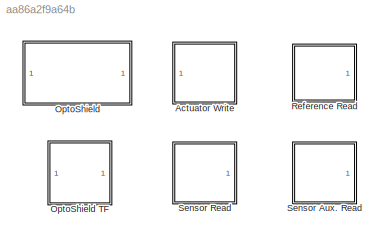
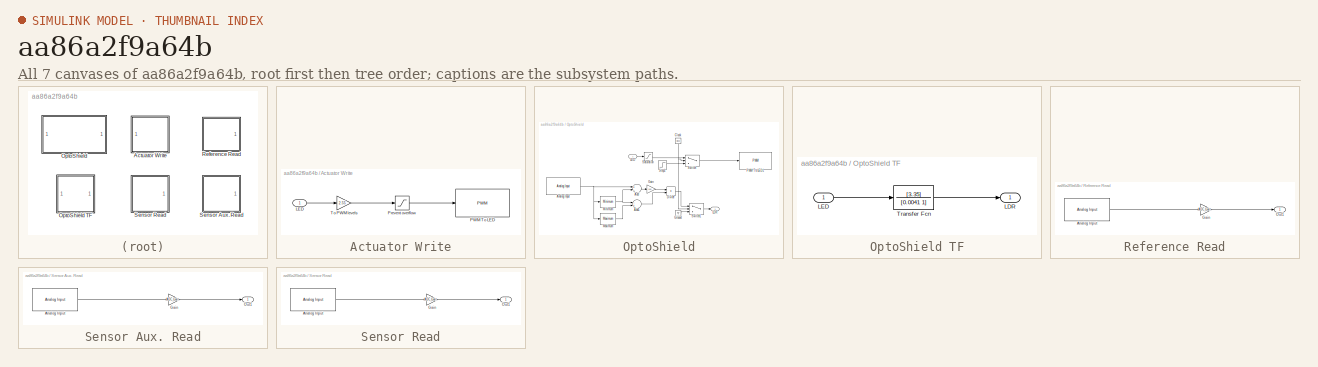
[diagram: thumbnail index - all 7 canvases of the model, root first then tree order]
MODEL slx_aa86a2f9a64b
KIND library
CONFIG AbsTol = auto
CONFIG EnableMultiTasking = off
CONFIG FixedStep = auto
CONFIG MaxStep = auto
CONFIG MinStep = auto
CONFIG RelTol = 1e-3
CONFIG SampleTimeConstraint = Unconstrained
CONFIG Solver = VariableStepAuto
CONFIG SolverName = VariableStepAuto
CONFIG StartTime = 0.0
CONFIG StopTime = 10.0
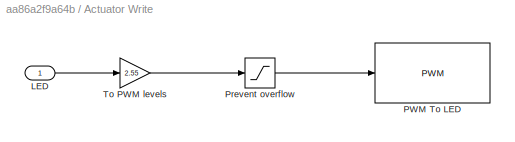
BLOCK [SubSystem] Actuator Write
  Ports = [1]
  RequestExecContextInheritance = off
BLOCK [Inport] Actuator Write/LED
  IconDisplay = Port number
BLOCK [Reference] Actuator Write/PWM To LED  REF=arduinolib/PWM
  Ports = [1]
  SourceBlock = arduinolib/PWM
  SourceProductBaseCode = ARDUINO
  SourceProductName = Simulink Support Package for Arduino Hardware
  SourceType = Arduino PWM
BLOCK [Saturate] Actuator Write/Prevent overflow
  InputPortMap = u0
  LowerLimit = 0
  Ports = [1, 1]
  UpperLimit = 255
BLOCK [Gain] Actuator Write/To PWM levels
  Gain = 2.55
  OutDataTypeStr = Inherit: Inherit via internal rule
  ParamDataTypeStr = Inherit: Inherit via internal rule
  SaturateOnIntegerOverflow = off
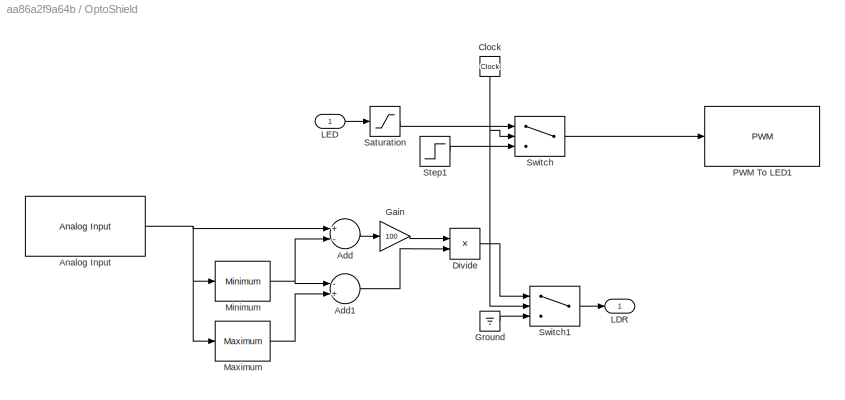
BLOCK [SubSystem] OptoShield
  Ports = [1, 1]
  RequestExecContextInheritance = off
BLOCK [SubSystem] OptoShield TF
  Ports = [1, 1]
  RequestExecContextInheritance = off
BLOCK [Outport] OptoShield TF/LDR
  IconDisplay = Port number
BLOCK [Inport] OptoShield TF/LED
  IconDisplay = Port number
BLOCK [TransferFcn] OptoShield TF/Transfer Fcn
  Denominator = [0.0041 1]
  Numerator = [3.35]
BLOCK [Sum] OptoShield/Add
  InputSameDT = off
  Inputs = +-
  OutDataTypeStr = Inherit: Inherit via internal rule
  Ports = [2, 1]
  SaturateOnIntegerOverflow = off
BLOCK [Sum] OptoShield/Add1
  InputSameDT = off
  Inputs = -+
  OutDataTypeStr = Inherit: Inherit via internal rule
  Ports = [2, 1]
  SaturateOnIntegerOverflow = off
BLOCK [Reference] OptoShield/Analog Input  REF=arduinolib/Analog Input
  Ports = [0, 1]
  SourceBlock = arduinolib/Analog Input
  SourceProductBaseCode = ARDUINO
  SourceProductName = Simulink Support Package for Arduino Hardware
  SourceType = Arduino Analog Input
BLOCK [Clock] OptoShield/Clock
BLOCK [Product] OptoShield/Divide
  InputSameDT = off
  Inputs = */
  OutDataTypeStr = Inherit: Inherit via internal rule
  Ports = [2, 1]
  RndMeth = Floor
  SaturateOnIntegerOverflow = off
BLOCK [Gain] OptoShield/Gain
  Gain = 100
  OutDataTypeStr = Inherit: Inherit via internal rule
  ParamDataTypeStr = Inherit: Inherit via internal rule
  SaturateOnIntegerOverflow = off
BLOCK [Ground] OptoShield/Ground
BLOCK [Outport] OptoShield/LDR
  IconDisplay = Port number
BLOCK [Inport] OptoShield/LED
  IconDisplay = Port number
BLOCK [Reference] OptoShield/Maximum  REF=dspstat3/Maximum
  Ports = [1, 1]
  SourceBlock = dspstat3/Maximum
  SourceProductBaseCode = DS
  SourceProductName = DSP System Toolbox
  SourceType = Maximum
  UserDataPersistent = on
BLOCK [Reference] OptoShield/Minimum  REF=dspstat3/Minimum
  Ports = [1, 1]
  SourceBlock = dspstat3/Minimum
  SourceProductBaseCode = DS
  SourceProductName = DSP System Toolbox
  SourceType = Minimum
  UserDataPersistent = on
BLOCK [Reference] OptoShield/PWM To LED1  REF=arduinolib/PWM
  Ports = [1]
  SourceBlock = arduinolib/PWM
  SourceProductBaseCode = ARDUINO
  SourceProductName = Simulink Support Package for Arduino Hardware
  SourceType = Arduino PWM
BLOCK [Saturate] OptoShield/Saturation
  InputPortMap = u0
  LowerLimit = 0
  Ports = [1, 1]
  UpperLimit = 100
BLOCK [Step] OptoShield/Step1
  After = 255
  SampleTime = Ts
  Time = round((0.8*Tcal/2)/Ts)*Ts
BLOCK [Switch] OptoShield/Switch
  Criteria = u2 > Threshold
  InputSameDT = off
  SaturateOnIntegerOverflow = off
  Threshold = Tcal
BLOCK [Switch] OptoShield/Switch1
  Criteria = u2 > Threshold
  InputSameDT = off
  SaturateOnIntegerOverflow = off
  Threshold = Tcal
BLOCK [SubSystem] Reference Read
  Ports = [0, 1]
  RequestExecContextInheritance = off
BLOCK [Reference] Reference Read/Analog Input  REF=arduinolib/Analog Input
  Ports = [0, 1]
  SourceBlock = arduinolib/Analog Input
  SourceProductBaseCode = ARDUINO
  SourceProductName = Simulink Support Package for Arduino Hardware
  SourceType = Arduino Analog Input
BLOCK [Gain] Reference Read/Gain
  Gain = ADC_Gain
  OutDataTypeStr = Inherit: Inherit via internal rule
  ParamDataTypeStr = Inherit: Inherit via internal rule
  SaturateOnIntegerOverflow = off
BLOCK [Outport] Reference Read/Out1
  IconDisplay = Port number
BLOCK [SubSystem] Sensor Aux. Read
  Ports = [0, 1]
  RequestExecContextInheritance = off
BLOCK [Reference] Sensor Aux. Read/Analog Input  REF=arduinolib/Analog Input
  Ports = [0, 1]
  SourceBlock = arduinolib/Analog Input
  SourceProductBaseCode = ARDUINO
  SourceProductName = Simulink Support Package for Arduino Hardware
  SourceType = Arduino Analog Input
BLOCK [Gain] Sensor Aux. Read/Gain
  Gain = ADC_Gain
  OutDataTypeStr = Inherit: Inherit via internal rule
  ParamDataTypeStr = Inherit: Inherit via internal rule
  SaturateOnIntegerOverflow = off
BLOCK [Outport] Sensor Aux. Read/Out1
  IconDisplay = Port number
BLOCK [SubSystem] Sensor Read
  Ports = [0, 1]
  RequestExecContextInheritance = off
BLOCK [Reference] Sensor Read/Analog Input  REF=arduinolib/Analog Input
  Ports = [0, 1]
  SourceBlock = arduinolib/Analog Input
  SourceProductBaseCode = ARDUINO
  SourceProductName = Simulink Support Package for Arduino Hardware
  SourceType = Arduino Analog Input
BLOCK [Gain] Sensor Read/Gain
  Gain = ADC_Gain
  OutDataTypeStr = Inherit: Inherit via internal rule
  ParamDataTypeStr = Inherit: Inherit via internal rule
  SaturateOnIntegerOverflow = off
BLOCK [Outport] Sensor Read/Out1
  IconDisplay = Port number
LINE Actuator Write/LED:1 -> Actuator Write/To PWM levels:1
LINE Actuator Write/Prevent overflow:1 -> Actuator Write/PWM To LED:1
LINE Actuator Write/To PWM levels:1 -> Actuator Write/Prevent overflow:1
LINE OptoShield TF/LED:1 -> OptoShield TF/Transfer Fcn:1
LINE OptoShield TF/Transfer Fcn:1 -> OptoShield TF/LDR:1
LINE OptoShield/Add1:1 -> OptoShield/Divide:2
LINE OptoShield/Add:1 -> OptoShield/Gain:1
NET OptoShield/Analog Input:1 -> OptoShield/Add:1, OptoShield/Maximum:1, OptoShield/Minimum:1
NET OptoShield/Clock:1 -> OptoShield/Switch1:2, OptoShield/Switch:2
LINE OptoShield/Divide:1 -> OptoShield/Switch1:1
LINE OptoShield/Gain:1 -> OptoShield/Divide:1
LINE OptoShield/Ground:1 -> OptoShield/Switch1:3
LINE OptoShield/LED:1 -> OptoShield/Saturation:1
LINE OptoShield/Maximum:1 -> OptoShield/Add1:2
NET OptoShield/Minimum:1 -> OptoShield/Add1:1, OptoShield/Add:2
LINE OptoShield/Saturation:1 -> OptoShield/Switch:1
LINE OptoShield/Step1:1 -> OptoShield/Switch:3
LINE OptoShield/Switch1:1 -> OptoShield/LDR:1
LINE OptoShield/Switch:1 -> OptoShield/PWM To LED1:1
LINE Reference Read/Analog Input:1 -> Reference Read/Gain:1
LINE Reference Read/Gain:1 -> Reference Read/Out1:1
LINE Sensor Aux. Read/Analog Input:1 -> Sensor Aux. Read/Gain:1
LINE Sensor Aux. Read/Gain:1 -> Sensor Aux. Read/Out1:1
LINE Sensor Read/Analog Input:1 -> Sensor Read/Gain:1
LINE Sensor Read/Gain:1 -> Sensor Read/Out1:1
note: NET lines group one-source signal fan-out (src -> all destinations, sorted); 1:1 wires keep LINE
